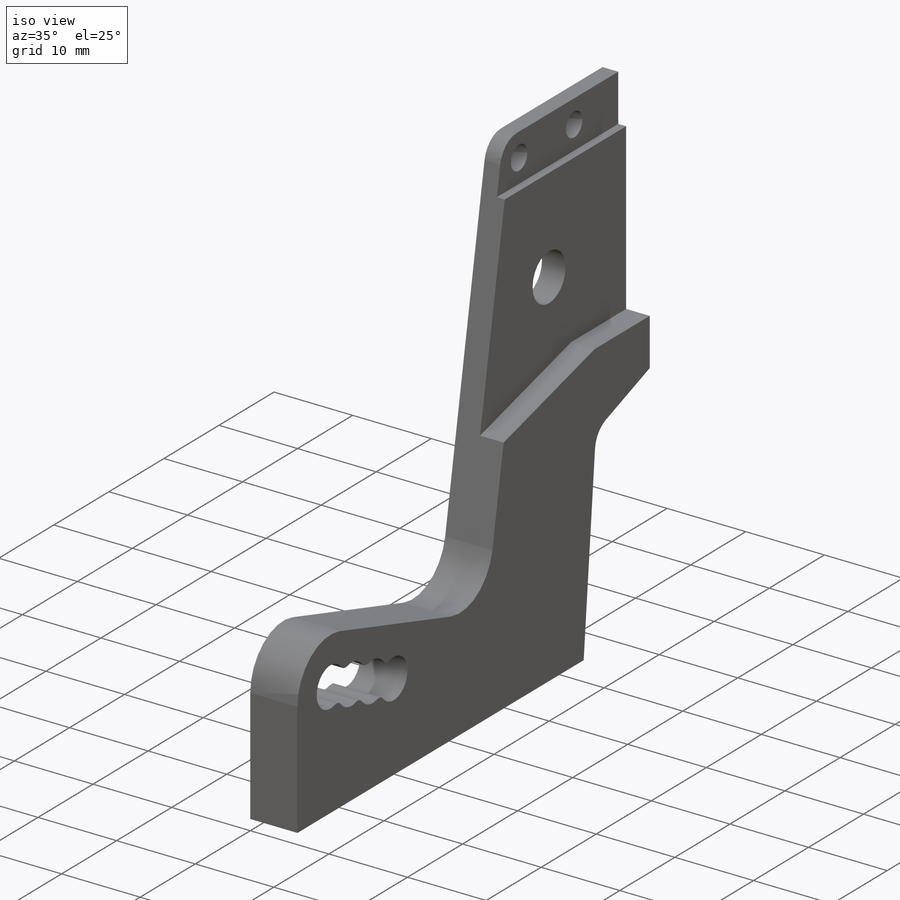
[diagram: iso view]
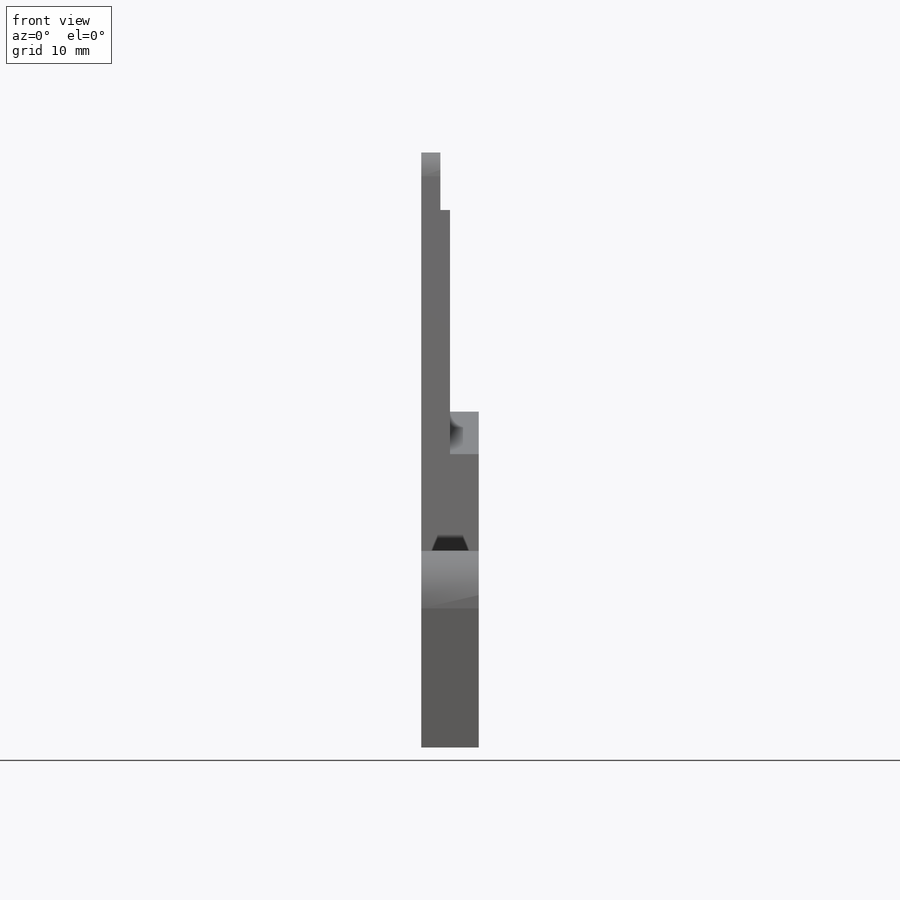
[diagram: front view]
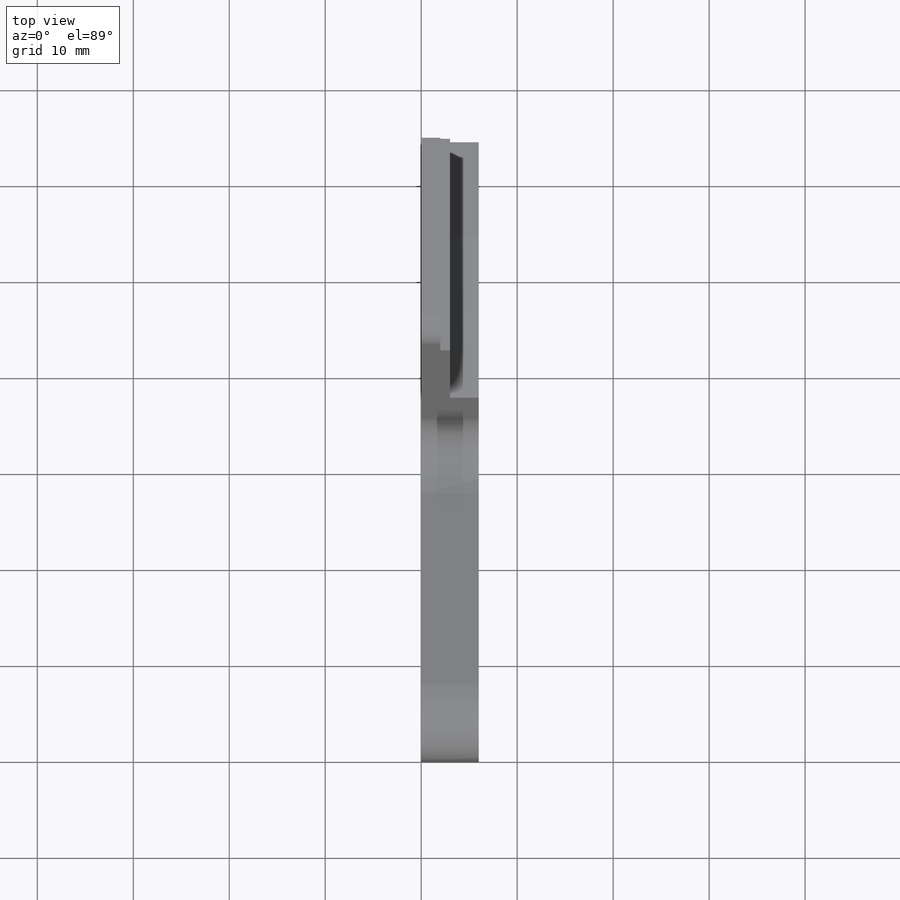
[diagram: top view]
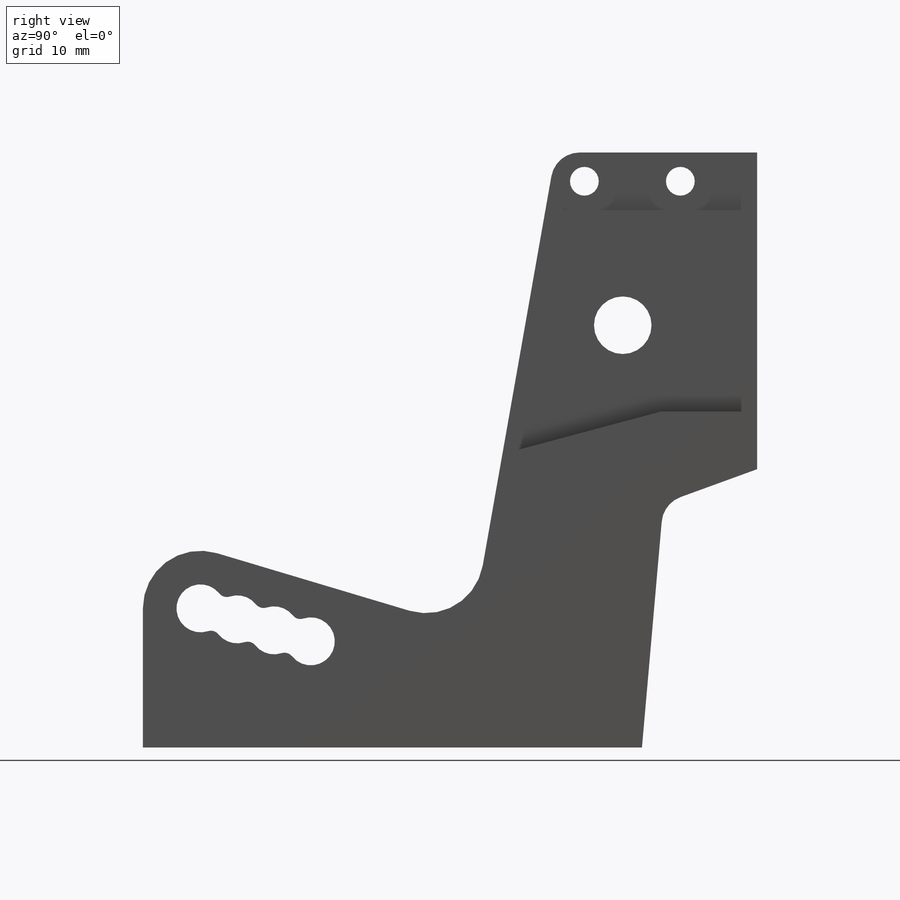
[diagram: right view]
SOLIDWORKS PART (.sldprt)
format: sldprt  version: not decoded by parser v0  size: 450,560 bytes
history: native  units: mm
features: sketch x9, cut_extrude x6, fillet x3, material x1, extrude x1, hole x1, pattern_linear x1 (+11 scaffold rows collapsed)
feature tree (33):
  scaffold x11  (default folders/planes/origin — collapsed)
  material  "1060 Alloy"
  sketch  "Sketch1"  dims[c1.D1=6.0mm c1.D2=5.0mm c1.D3=14.5mm c1.D4=6.0mm c1.D5=44.0mm c1.D6=10.0mm c1.D7=64.0mm c1.D8=62.0mm c2.D6=50.0mm]
  extrude  "Boss-Extrude1"  Depth=6mm
  sketch  "Sketch3"  dims[c1.D1=8.0mm c1.D2=8.0mm c1.D3=10.0mm c1.D4=8.0mm c1.D5=~3.103646mm c2.D4=3.0mm c2.D5=5.5mm c2.D6=8.0mm c2.D7=3.0mm c2.D8=2.1mm c2.D9=3.0mm c2.D10=3.0mm c2.D11=3.0mm c2.D12=3.0mm c2.D13=5.0mm c2.D14=10.0mm c2.D15=3.0mm c2.D16=5.5mm c2.D17=9.0mm c2.D18=3.0mm c2.D19=3.0mm c2.D20=2.1mm c3.D19=5.0mm c3.D21=8.0mm c3.D22=8.0mm c3.D23=3.0mm c3.D3=12.0mm c4.D23=5.0mm c4.D12=3.0mm c4.D13=5.0mm c4.D14=5.0mm c4.D15=10.0mm c4.D2=25.0mm c4.D3=15.0mm c4.D1=29.0mm c5.D2=55.0mm c5.D1=~7.846934mm c6.D1=70.0deg c6.D2=29.0mm c6.D3=52.0mm c6.D4=~26.71974mm c7.D4=85.0deg]
  cut_extrude  "Cut-Extrude2"  [1 undecoded]
  fillet  "Fillet2"  Radius=3mm
  hole  "Tap Drill for M3 Tap1"  Diameter=2.5mm Depth=9mm
  sketch  "Sketch5"  dims[D1=3.0mm D2=12.0mm D3=36.0mm]
  sketch  "Sketch4"  dims[hole-wizard template sketch: 47 standard entries collapsed; hole parameters kept: c15.Hole Depth=9.0mm c15.D3=~14.816244mm c15.Drill Angle=118.0deg]
  sketch  "Sketch9"  dims[c1.D1=15.9mm c1.D2=11.0mm c1.D5=8.0mm c1.D7=6.0mm c1.D8=2.0mm c1.D11=6.0mm c1.D3=11.0mm c1.D4=~12.736761mm c2.D3=~18.039547mm c2.D6=~25.029695mm c2.D7=18.0mm c2.D8=11.0mm c2.D9=22.0mm c2.D10=25.0mm c3.D3=~12.736761mm c3.D6=5.0deg c4.D3=~34.736761mm c4.D1=43.0mm c4.D2=45.0mm c5.D2=80.0deg c5.D3=20.0mm]
  cut_extrude  "Cut-Extrude3"  Depth=8mm
  sketch  "Sketch13"  dims[c1.D1=6.5mm c1.D2=~16.268425mm c2.D2=~0.16699deg c3.D2=3.0mm c3.D3=2.0mm c3.D4=~1.940006mm c4.D4=128.0deg c5.D4=~17.868648mm c5.D2=6.0mm c6.D4=~12.809132mm c7.D4=~0.090914deg c8.D4=3.0mm c8.D5=1.5mm c8.D3=~4.339914mm c9.D3=50.0deg c9.D2=~22.084269mm c10.D2=8.0deg c10.D3=5.5mm c10.D5=3.0mm c10.D6=3.5mm c10.D7=1.25mm c10.D8=6.0mm c10.D9=0.5mm c10.D10=~9.274619mm c11.D10=~44.49423deg c12.D10=11.0mm c13.D10=45.0deg c13.D2=~12.758764mm c14.D2=65.0deg c14.D1=10.0mm c14.D3=27.0mm]
  cut_extrude  "Cut-Extrude4"  Depth=3mm
  fillet  "Fillet3"  Radius=3mm
  sketch  "Sketch14"  dims[D1=3.0mm D2=10.0mm D3=8.0mm D4=3.0mm]
  cut_extrude  "Cut-Extrude5"  [1 undecoded]
  sketch  "Sketch15"  dims[D1=4.0mm]
  cut_extrude  "Cut-Extrude6"  [1 undecoded]
  pattern_linear  "LPattern3"  Count1=3 Count2=1 Spacing1=4mm Spacing2=10mm
  fillet  "Fillet4"  Radius=1mm
  sketch  "Sketch16"  dims[D1=6.0mm]
  cut_extrude  "Cut-Extrude7"  Depth=1mm
decode coverage: 18 of 21 modeling features carry decoded parameters
note: ~ marks probable driven/reference dimensions
note: 3 parameter values undecoded
summary: no parameter record found for 3 features
note: suppression state not decoded; provenance and decode notes live in map.json
